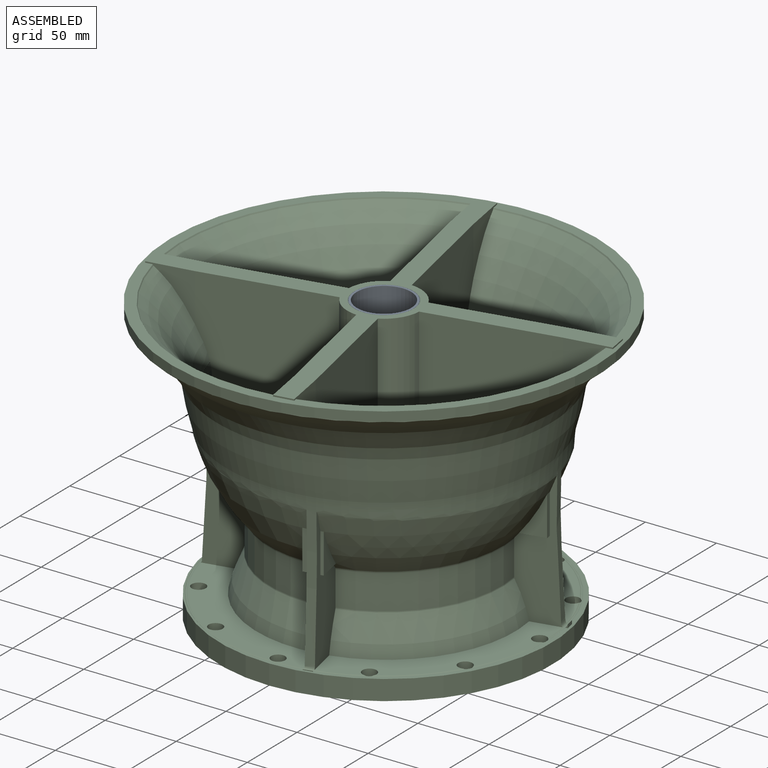
[diagram: assembled view]
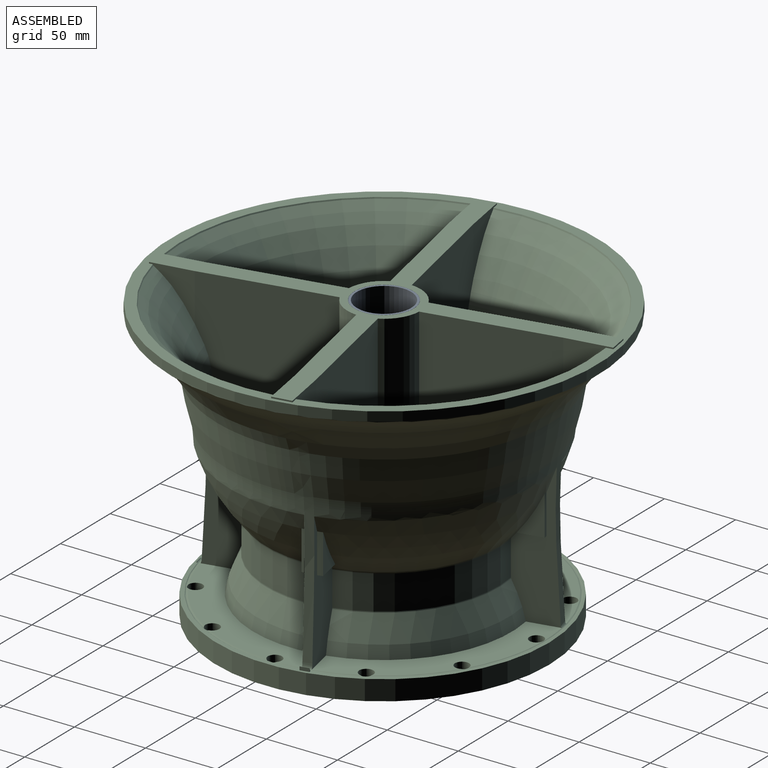
[diagram: assembled view, second angle]
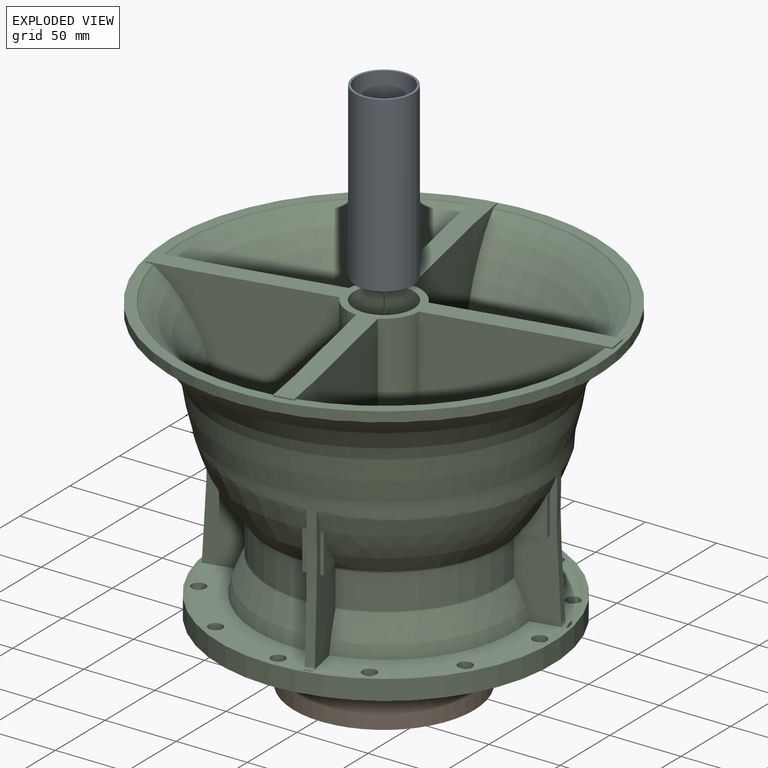
[diagram: exploded view]
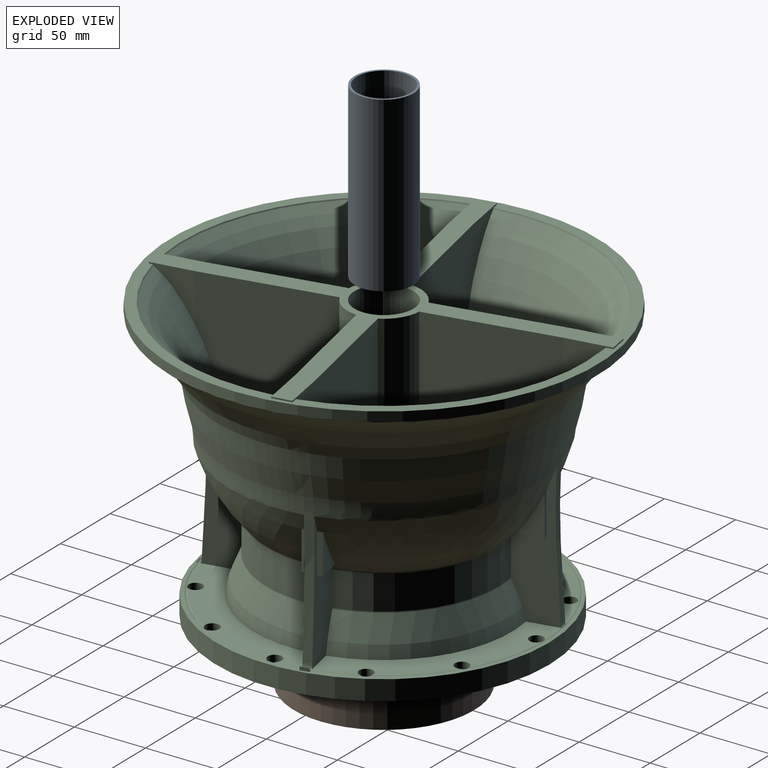
[diagram: exploded view, second angle]
ASSEMBLY  parts=3 mates=2
PART A: 4 faces, bbox 41.4x121.9x41.4 mm
  f0: cylinder r=19.11mm len=121.92mm, axis (0,-1,0), area 14641.8mm2, adj f2,f3
  f1: cylinder r=20.7mm len=121.92mm, axis (0,-1,0), area 15857.9mm2, adj f2,f3
  f2: plane 41.4x41.4mm, normal (0,1,0), area 198.6mm2, adj f0,f1
  f3: plane 41.4x41.4mm, normal (0,-1,0), area 198.6mm2, adj f0,f1
PART B: 4 faces, bbox 126.9x21.3x126.9 mm
  f0: cylinder r=54.02mm len=108.05mm, axis (0,1,0), area 7242.2mm2, adj f2,f3
  f1: cylinder r=63.46mm len=126.93mm, axis (0,1,0), area 8508mm2, adj f2,f3
  f2: plane 126.93x126.93mm, normal (0,-1,0), area 3485.1mm2, adj f0,f1
  f3: plane 126.93x126.93mm, normal (0,1,0), area 3485.1mm2, adj f0,f1
PART C: 178 faces, bbox 306.1x306.1x213.7 mm
  f0: plane 0.68x0.63mm, normal (0.98,0.21,0), area 0.2mm2, adj f46,f71,f175
  f1: plane 0.57x0.55mm, normal (-0.98,-0.21,0), area 0.1mm2, adj f46,f71,f175
  f2: plane 96.03x29.73mm, normal (0.21,-0.98,0), area 1581.8mm2, adj f7,f12,f78,f79,f80,f81,f154,f155
  f3: plane 96.08x29.75mm, normal (-0.21,0.98,0), area 1583.4mm2, adj f4,f11,f67,f68,f69,f77,f151,f152
  f4: plane 129.37x91.31mm, normal (0,0,1), area 3092.7mm2, adj f3,f18,f56,f57,f58,f69,f175
  f5: plane 131.16x92.6mm, normal (0,0,1), area 3369.9mm2, adj f16,f19,f53,f54,f55,f85,f175
  f6: plane 131.76x91.25mm, normal (0,0,1), area 3302mm2, adj f15,f21,f50,f51,f52,f65,f175
  f7: plane 129.96x89.91mm, normal (0,0,1), area 3032.8mm2, adj f2,f17,f48,f49,f59,f79,f175
  f8: plane 2.96x0.9mm, normal (0,0,-1), area 0.5mm2, adj f14,f15,f126,f175
  f9: plane 4.21x0.87mm, normal (0,0,-1), area 0.8mm2, adj f16,f20,f127,f175
  f10: revolved ~300.18x300.18mm, area 1400mm2, adj f137,f175
  f11: revolved ~127.17x90.96mm, area 7797.5mm2, adj f3,f18,f67,f151,f152,f153,f166,f167
  f12: revolved ~126.24x90.22mm, area 7466.4mm2, adj f2,f17,f81,f154,f155,f156,f169,f170
  f13: revolved ~212.27x212.27mm, area 72779.8mm2, adj f27,f29,f33,f38,f39,f40,f41,f42
  f14: revolved ~129.07x92.68mm, area 8595.1mm2, adj f8,f15,f21,f83,f126,f157,f158,f159
  f15: plane 106.79x32.24mm, normal (0.21,-0.98,0), area 1841.5mm2, adj f6,f8,f14,f65,f66,f82,f83,f172
  f16: plane 106.84x32.26mm, normal (-0.21,0.98,0), area 1843.3mm2, adj f5,f9,f20,f84,f85,f86,f87,f163
  f17: plane 99.33x30.65mm, normal (0.98,0.21,0), area 1674.2mm2, adj f7,f12,f78,f79,f80,f81,f169,f170
  f18: plane 101.91x31.25mm, normal (0.98,0.21,0), area 1735.4mm2, adj f4,f11,f67,f68,f69,f77,f166,f167
  f19: plane 102.2x31.32mm, normal (-0.98,-0.21,0), area 1742.9mm2, adj f5,f20,f84,f85,f86,f87,f160,f161
  f20: revolved ~129.29x92.8mm, area 8996.1mm2, adj f9,f16,f19,f87,f127,f160,f161,f162
  f21: plane 99.65x30.73mm, normal (-0.98,-0.21,0), area 1681.4mm2, adj f6,f14,f65,f66,f82,f83,f157,f158
  f22: plane 2.9x1.97mm, normal (0.21,-0.98,0), area 1.5mm2, adj f47,f71,f175
  f23: plane 2.85x1.94mm, normal (-0.21,0.98,0), area 1.5mm2, adj f47,f71,f175
  f24: revolved ~159.34x116.46mm, area 14230.9mm2, adj f25,f38,f39,f129,f139,f149
  f25: cone r=142.58mm half-angle=29.6deg, axis (0,0,1), area 196mm2, adj f24,f26,f139,f149
  f26: plane 300.18x300.18mm, normal (0,0,1), area 6693.3mm2, adj f25,f28,f30,f32,f137,f138,f139,f140
  f27: revolved ~159.34x116.46mm, area 14021.6mm2, adj f13,f28,f35,f36,f44,f45,f132,f146
  f28: cone r=142.58mm half-angle=29.6deg, axis (0,0,1), area 196mm2, adj f26,f27,f146,f148
  f29: revolved ~159.34x116.46mm, area 14128.4mm2, adj f13,f30,f34,f37,f42,f43,f131,f143
  f30: cone r=142.58mm half-angle=29.6deg, axis (0,0,1), area 196mm2, adj f26,f29,f143,f145
  f31: revolved ~159.34x116.46mm, area 14230.9mm2, adj f32,f40,f41,f130,f140,f142
  f32: cone r=142.58mm half-angle=29.6deg, axis (0,0,1), area 196mm2, adj f26,f31,f140,f142
  f33: revolved ~152.42x152.42mm, area 10807.2mm2, adj f13,f134
  f34: plane 22.12x8.88mm, normal (0,0,1), area 1.5mm2, adj f29,f37,f43
  f35: plane 70.05x15.2mm, normal (0,0,1), area 9.2mm2, adj f27,f36,f44
  f36: revolved ~70.02x15.07mm, area 29.7mm2, adj f27,f35,f44
  f37: revolved ~22.12x8.79mm, area 7.2mm2, adj f29,f34,f43
  f38: plane 133.87x92.83mm, normal (0.98,0.21,0), area 10190.6mm2, adj f13,f24,f122,f128,f129,f149,f150
  f39: plane 134.09x93.55mm, normal (-0.21,0.98,0), area 10291.9mm2, adj f13,f24,f122,f128,f129,f139,f150
  f40: plane 133.87x92.83mm, normal (0.21,-0.98,0), area 10277.2mm2, adj f13,f31,f123,f128,f130,f140,f150
  f41: plane 134.09x93.55mm, normal (0.98,0.21,0), area 10242mm2, adj f13,f31,f123,f128,f130,f142,f150
  f42: plane 133.87x92.83mm, normal (-0.98,-0.21,0), area 10214.3mm2, adj f13,f29,f124,f128,f131,f143,f150
  f43: plane 131.57x91.03mm, normal (0.21,-0.98,0), area 10147.6mm2, adj f13,f29,f34,f37,f124,f128,f145,f150
  f44: plane 131.41x90.38mm, normal (-0.21,0.98,0), area 10127.8mm2, adj f13,f27,f35,f36,f125,f128,f146,f150
  f45: plane 134.09x93.55mm, normal (-0.98,-0.21,0), area 10197.2mm2, adj f13,f27,f125,f128,f132,f148,f150
  f46: plane 6.25x1.44mm, normal (0.21,-0.98,0), area 3.4mm2, adj f0,f1,f71,f175
  f47: plane 6.33x2.66mm, normal (0.98,0.21,0), area 14.7mm2, adj f22,f23,f71,f175
  f48: cylinder r=4.96mm len=14.06mm, axis (0,0,1), area 438.3mm2, adj f7,f76,f175
  f49: cylinder r=4.96mm len=14.06mm, axis (0,0,1), area 438.3mm2, adj f7,f76,f175
  f50: cylinder r=4.96mm len=14.06mm, axis (0,0,1), area 438.3mm2, adj f6,f76
  f51: cylinder r=4.96mm len=14.06mm, axis (0,0,1), area 438.3mm2, adj f6,f76
  f52: cylinder r=4.96mm len=14.06mm, axis (0,0,1), area 438.3mm2, adj f6,f76
  f53: cylinder r=4.96mm len=14.06mm, axis (0,0,1), area 438.3mm2, adj f5,f76
  f54: cylinder r=4.96mm len=14.06mm, axis (0,0,1), area 438.3mm2, adj f5,f76
  f55: cylinder r=4.96mm len=14.06mm, axis (0,0,1), area 438.3mm2, adj f5,f76
  f56: cylinder r=4.96mm len=14.06mm, axis (0,0,1), area 438.3mm2, adj f4,f76
  f57: cylinder r=4.96mm len=14.06mm, axis (0,0,1), area 438.3mm2, adj f4,f76,f175
  f58: cylinder r=4.96mm len=14.06mm, axis (0,0,1), area 438.3mm2, adj f4,f76,f175
  f59: cylinder r=4.96mm len=14.06mm, axis (0,0,1), area 438.3mm2, adj f7,f76,f175
  f60: cylinder r=94.38mm len=188.75mm, axis (0,0,1), area 4540mm2, adj f70,f72,f73,f74,f75,f88,f91,f95
  f61: cylinder r=70.41mm len=140.81mm, axis (0,0,1), area 1382.4mm2, adj f70,f72,f73,f74,f75,f90,f91,f92
  f62: cylinder r=63.53mm len=72.31mm, axis (0,0,1), area 1639.9mm2, adj f89,f90,f135
  f63: cylinder r=98.47mm len=196.94mm, axis (0,0,1), area 4736.9mm2, adj f76,f88
  f64: cylinder r=117.19mm len=234.38mm, axis (0,0,1), area 10354.4mm2, adj f71,f76
  f65: revolved ~104.2x71.24mm, area 3522.9mm2, adj f6,f15,f21,f82
  f66: cylinder r=81.67mm len=93.09mm, axis (0,0,1), area 2930.8mm2, adj f15,f21,f82,f83
  f67: torus R=84.17mm, axis (0,0,-1), area 228.9mm2, adj f3,f11,f18,f77
  f68: torus R=84.17mm, axis (0,0,-1), area 147.9mm2, adj f3,f18,f69,f77
  f69: revolved ~104.2x71.24mm, area 3522.9mm2, adj f3,f4,f18,f68
  f70: cone r=70.41mm half-angle=45deg, axis (0,0,-1), area 2729.6mm2, adj f60,f61,f109,f112
  f71: plane 234.38x234.38mm, normal (0,0,1), area 1582.2mm2, adj f0,f1,f22,f23,f46,f47,f64,f175
  f72: cone r=70.41mm half-angle=45deg, axis (0,0,-1), area 2729.6mm2, adj f60,f61,f114,f117
  f73: cone r=70.41mm half-angle=45deg, axis (0,0,-1), area 2729.6mm2, adj f60,f61,f104,f107
  f74: cone r=70.41mm half-angle=45deg, axis (0,0,-1), area 2729.6mm2, adj f60,f61,f99,f102
  f75: cone r=70.41mm half-angle=45deg, axis (0,0,-1), area 2729.6mm2, adj f60,f61,f94,f97
  f76: plane 234.38x234.38mm, normal (0,0,-1), area 11754.2mm2, adj f48,f49,f50,f51,f52,f53,f54,f55
  f77: cylinder r=81.67mm len=93.09mm, axis (0,0,1), area 2930.8mm2, adj f3,f18,f67,f68
  f78: cylinder r=81.67mm len=93.09mm, axis (0,0,1), area 2930.8mm2, adj f2,f17,f80,f81
  f79: revolved ~104.2x71.24mm, area 3522.9mm2, adj f2,f7,f17,f80
  f80: torus R=84.17mm, axis (0,0,-1), area 147.9mm2, adj f2,f17,f78,f79
  f81: torus R=84.17mm, axis (0,0,-1), area 228.9mm2, adj f2,f12,f17,f78
  f82: torus R=84.17mm, axis (0,0,-1), area 147.9mm2, adj f15,f21,f65,f66
  f83: torus R=84.17mm, axis (0,0,-1), area 228.9mm2, adj f14,f15,f21,f66
  f84: cylinder r=81.67mm len=93.09mm, axis (0,0,1), area 2930.8mm2, adj f16,f19,f86,f87
  f85: revolved ~104.2x71.24mm, area 3522.9mm2, adj f5,f16,f19,f86
  f86: torus R=84.17mm, axis (0,0,-1), area 147.9mm2, adj f16,f19,f84,f85
  f87: torus R=84.17mm, axis (0,0,-1), area 228.9mm2, adj f16,f19,f20,f84
  f88: plane 196.94x196.94mm, normal (0,0,-1), area 2480.1mm2, adj f60,f63
  f89: plane 72.31x12.16mm, normal (0,0,-1), area 11.7mm2, adj f62,f135
  f90: plane 140.81x140.81mm, normal (0,0,-1), area 6408.9mm2, adj f61,f62,f135,f136
  f91: cone r=70.41mm half-angle=45deg, axis (0,0,-1), area 2729.6mm2, adj f60,f61,f96,f119
  f92: cone r=69.72mm half-angle=6.3deg, axis (0,0,1), area 30.6mm2, adj f61,f93,f94,f96
  f93: cone r=88.16mm half-angle=45deg, axis (0,0,-1), area 143.7mm2, adj f92,f94,f95,f96
  f94: plane 24.65x24.41mm, normal (-0.14,-0.99,0), area 146.2mm2, adj f75,f92,f93,f95
  f95: cone r=94.38mm half-angle=83.7deg, axis (0,0,1), area 39.8mm2, adj f60,f93,f94,f96
  f96: plane 24.65x24.11mm, normal (0.21,0.98,0), area 146.2mm2, adj f91,f92,f93,f95
  f97: plane 24.65x18.32mm, normal (-0.74,0.67,0), area 146.2mm2, adj f75,f98,f100,f101
  f98: cone r=94.38mm half-angle=83.7deg, axis (0,0,1), area 39.8mm2, adj f60,f97,f99,f100
  f99: plane 24.65x19.42mm, normal (0.79,-0.62,0), area 146.2mm2, adj f74,f98,f100,f101
  f100: cone r=88.16mm half-angle=45deg, axis (0,0,-1), area 143.7mm2, adj f97,f98,f99,f101
  f101: cone r=69.72mm half-angle=6.3deg, axis (0,0,1), area 30.6mm2, adj f61,f97,f99,f100
  f102: plane 24.65x23.44mm, normal (-0.95,-0.31,0), area 146.2mm2, adj f74,f103,f105,f106
  f103: cone r=94.38mm half-angle=83.7deg, axis (0,0,1), area 39.8mm2, adj f60,f102,f104,f105
  f104: plane 24.65x22.86mm, normal (0.93,0.37,0), area 146.2mm2, adj f73,f103,f105,f106
  f105: cone r=88.16mm half-angle=45deg, axis (0,0,-1), area 143.7mm2, adj f102,f103,f104,f106
  f106: cone r=69.72mm half-angle=6.3deg, axis (0,0,1), area 30.6mm2, adj f61,f102,f104,f105
  f107: plane 24.65x24.11mm, normal (-0.21,-0.98,0), area 146.2mm2, adj f73,f108,f110,f111
  f108: cone r=94.38mm half-angle=83.7deg, axis (0,0,1), area 39.8mm2, adj f60,f107,f109,f110
  f109: plane 24.65x24.41mm, normal (0.14,0.99,0), area 146.2mm2, adj f70,f108,f110,f111
  f110: cone r=88.16mm half-angle=45deg, axis (0,0,-1), area 143.7mm2, adj f107,f108,f109,f111
  f111: cone r=69.72mm half-angle=6.3deg, axis (0,0,1), area 30.6mm2, adj f61,f107,f109,f110
  f112: plane 24.65x18.32mm, normal (0.74,-0.67,0), area 146.2mm2, adj f70,f113,f115,f116
  f113: cone r=94.38mm half-angle=83.7deg, axis (0,0,1), area 39.8mm2, adj f60,f112,f114,f115
  f114: plane 24.65x19.42mm, normal (-0.79,0.62,0), area 146.2mm2, adj f72,f113,f115,f116
  f115: cone r=88.16mm half-angle=45deg, axis (0,0,-1), area 143.7mm2, adj f112,f113,f114,f116
  f116: cone r=69.72mm half-angle=6.3deg, axis (0,0,1), area 30.6mm2, adj f61,f112,f114,f115
  f117: plane 24.65x23.44mm, normal (0.95,0.31,0), area 146.2mm2, adj f72,f118,f120,f121
  f118: cone r=94.38mm half-angle=83.7deg, axis (0,0,1), area 39.8mm2, adj f60,f117,f119,f120
  f119: plane 24.65x22.86mm, normal (-0.93,-0.37,0), area 146.2mm2, adj f91,f118,f120,f121
  f120: cone r=88.16mm half-angle=45deg, axis (0,0,-1), area 143.7mm2, adj f117,f118,f119,f121
  f121: cone r=69.72mm half-angle=6.3deg, axis (0,0,1), area 30.6mm2, adj f61,f117,f119,f120
  f122: cylinder r=25.8mm len=129.38mm, axis (0,0,-1), area 3476.2mm2, adj f38,f39,f128,f150
  f123: cylinder r=25.8mm len=129.38mm, axis (0,0,-1), area 3476.2mm2, adj f40,f41,f128,f150
  f124: cylinder r=25.8mm len=129.38mm, axis (0,0,-1), area 3476.2mm2, adj f42,f43,f128,f150
  f125: cylinder r=25.8mm len=129.38mm, axis (0,0,-1), area 3476.2mm2, adj f44,f45,f128,f150
  f126: plane 1.37x0.33mm, normal (0.21,-0.98,0), area 0.1mm2, adj f8,f14,f175
  f127: plane 1.79x0.42mm, normal (-0.21,0.98,0), area 0.2mm2, adj f9,f20,f175
  f128: plane 290.69x288.52mm, normal (0,0,1), area 7265.5mm2, adj f38,f39,f40,f41,f42,f43,f44,f45
  f129: cone r=111.38mm half-angle=84.8deg, axis (0,0,-1), area 217.8mm2, adj f13,f24,f38,f39
  f130: cone r=111.38mm half-angle=84.8deg, axis (0,0,-1), area 248.9mm2, adj f13,f31,f40,f41
  f131: cone r=111.38mm half-angle=84.8deg, axis (0,0,-1), area 43.7mm2, adj f13,f29,f42
  f132: cone r=111.38mm half-angle=84.8deg, axis (0,0,-1), area 8.1mm2, adj f13,f27,f45
  f133: cylinder r=20.81mm len=129.38mm, axis (0,0,1), area 16918.4mm2, adj f128,f150
  f134: plane 116.59x116.59mm, normal (0,0,1), area 1522.8mm2, adj f33,f136
  f135: cylinder r=64.62mm len=72.31mm, axis (0,0,-1), area 1636mm2, adj f62,f89,f90
  f136: cylinder r=53.98mm len=107.95mm, axis (0,0,-1), area 8614mm2, adj f90,f134
  f137: cylinder r=150.09mm len=300.18mm, axis (0,0,-1), area 6075.7mm2, adj f10,f26
  f138: plane 13.31x2.28mm, normal (0.99,0.17,0), area 13.3mm2, adj f26,f128,f139,f140
  f139: plane 39.39x36.99mm, normal (-0.17,0.99,0), area 408.3mm2, adj f24,f25,f26,f39,f128,f138
  f140: plane 40.45x37.14mm, normal (0.17,-0.99,0), area 423.5mm2, adj f26,f31,f32,f40,f128,f138
  f141: plane 13.31x2.28mm, normal (0.17,-0.99,0), area 13.3mm2, adj f26,f128,f142,f143
  f142: plane 39.39x34.52mm, normal (0.99,0.17,0), area 405.8mm2, adj f26,f31,f32,f41,f128,f141
  f143: plane 40.45x34.67mm, normal (-0.99,-0.17,0), area 421mm2, adj f26,f29,f30,f42,f128,f141
  f144: plane 13.31x2.28mm, normal (-0.99,-0.17,0), area 13.3mm2, adj f26,f128,f145,f146
  f145: plane 39.39x36.99mm, normal (0.17,-0.99,0), area 408.3mm2, adj f26,f29,f30,f43,f128,f144
  f146: plane 40.45x37.14mm, normal (-0.17,0.99,0), area 423.5mm2, adj f26,f27,f28,f44,f128,f144
  f147: plane 13.31x2.28mm, normal (-0.17,0.99,0), area 13.3mm2, adj f26,f128,f148,f149
  f148: plane 39.39x37.28mm, normal (-0.99,-0.17,0), area 408.6mm2, adj f26,f27,f28,f45,f128,f147
  f149: plane 40.45x37.43mm, normal (0.99,0.17,0), area 423.8mm2, adj f24,f25,f26,f38,f128,f147
  f150: plane 151.48x151.46mm, normal (0,0,-1), area 3464.7mm2, adj f13,f38,f39,f40,f41,f42,f43,f44
  f151: plane 18.27x7.2mm, normal (0,0,-1), area 64.9mm2, adj f3,f11,f152,f153
  f152: cylinder r=103.98mm len=27.85mm, axis (0,0,1), area 101.6mm2, adj f3,f11,f151,f153
  f153: plane 28.12x17.61mm, normal (-0.21,0.98,0), area 222.3mm2, adj f11,f151,f152
  f154: plane 17.88x7.19mm, normal (0,0,-1), area 63.3mm2, adj f2,f12,f155,f156
  f155: cylinder r=103.98mm len=27.85mm, axis (0,0,1), area 100.4mm2, adj f2,f12,f154,f156
  f156: plane 28.1x17.57mm, normal (0.21,-0.98,0), area 222.2mm2, adj f12,f154,f155
  f157: plane 18.09x8.78mm, normal (0,0,-1), area 91.4mm2, adj f14,f21,f158,f159
  f158: cylinder r=103.98mm len=27.85mm, axis (0,0,1), area 144.8mm2, adj f14,f21,f157,f159
  f159: plane 28.16x17.66mm, normal (-0.98,-0.21,0), area 222.5mm2, adj f14,f157,f158
  f160: plane 18.56x8.15mm, normal (0,0,-1), area 82.3mm2, adj f19,f20,f161,f162
  f161: cylinder r=103.98mm len=27.85mm, axis (0,0,1), area 129.1mm2, adj f19,f20,f160,f162
  f162: plane 28.16x17.66mm, normal (-0.98,-0.21,0), area 222.5mm2, adj f20,f160,f161
  f163: plane 17.96x7.79mm, normal (0,0,-1), area 74mm2, adj f16,f20,f164,f165
  f164: plane 28.12x17.61mm, normal (-0.21,0.98,0), area 222.3mm2, adj f20,f163,f165
  f165: cylinder r=103.98mm len=27.85mm, axis (0,0,1), area 117.3mm2, adj f16,f20,f163,f164
  f166: plane 17.73x6.22mm, normal (0,0,-1), area 45.9mm2, adj f11,f18,f167,f168
  f167: cylinder r=103.98mm len=27.85mm, axis (0,0,1), area 73mm2, adj f11,f18,f166,f168
  f168: plane 28.06x17.53mm, normal (0.98,0.21,0), area 222.1mm2, adj f11,f166,f167
  f169: plane 17.83x5.67mm, normal (0,0,-1), area 36.8mm2, adj f12,f17,f170,f171
  f170: cylinder r=103.98mm len=27.85mm, axis (0,0,1), area 57.3mm2, adj f12,f17,f169,f171
  f171: plane 28.06x17.53mm, normal (0.98,0.21,0), area 222.1mm2, adj f12,f169,f170
  f172: plane 18.1x6.62mm, normal (0,0,-1), area 54.2mm2, adj f14,f15,f173,f174
  f173: plane 28.1x17.57mm, normal (0.21,-0.98,0), area 222.2mm2, adj f14,f172,f174
  f174: cylinder r=103.98mm len=27.85mm, axis (0,0,1), area 84.7mm2, adj f14,f15,f172,f173
  f175: revolved ~299.56x299.56mm, area 73749.4mm2, adj f0,f1,f2,f3,f4,f5,f6,f7
  f176: plane 18.41x3.35mm, normal (-0.99,-0.17,0), area 2.8mm2, adj f175,f177
  f177: extruded ~19.21x9.22mm, area 74.5mm2, adj f175,f176
PLACE A rot(axis=(-1,0,0),90deg) t=(11.56,-29.14,105.48)mm
PLACE B rot(axis=(1,0,0),90deg) t=(11.56,-29.14,-294.7)mm
PLACE C t=(11.56,-29.14,51.29)mm
MATE fastened B.f0 <-> C.f135  axis (0,0,-1) through (11.56,-29.14,-111.94)mm
MATE fastened A.f0 <-> C.f25  axis (0,0,1) through (11.56,-29.14,61.11)mm
